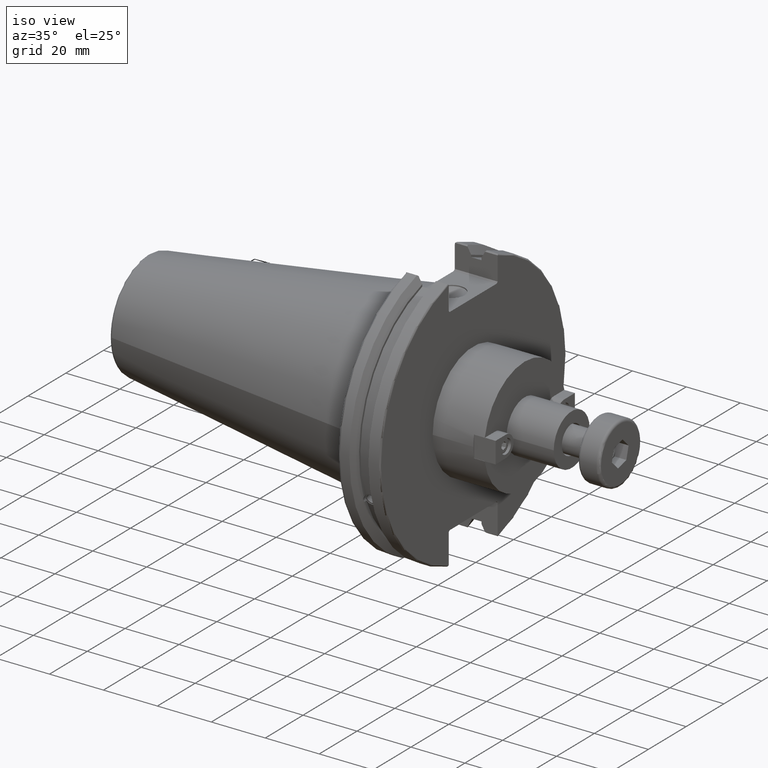
[diagram: clean part render]
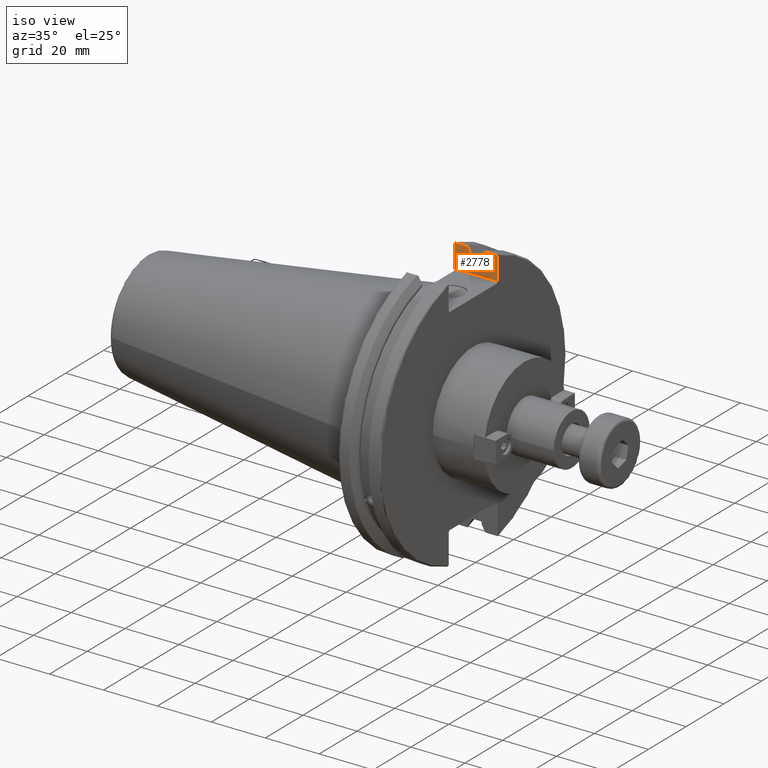
[diagram: same view with one face highlighted and labeled with its STEP entity id]
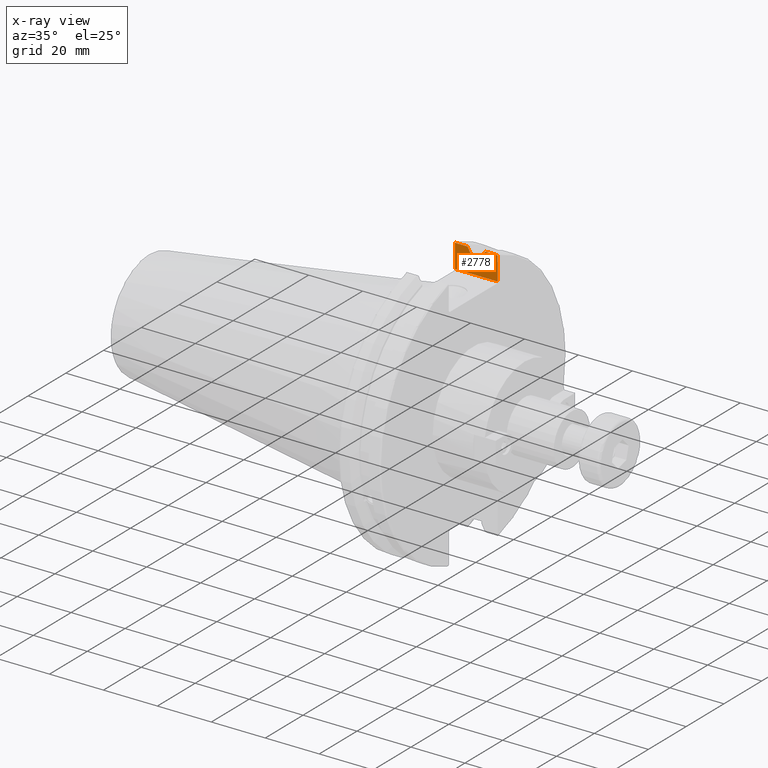
[diagram: x-ray of the same camera — body ghosted, the highlighted face saturated]
A machine part, iso view. The second image highlights one B-rep face of the part: STEP entity #2778.
The next image is the same camera in x-ray: the body ghosted, the highlighted face saturated — about 0% of this face is hidden behind the body in this view.
In plain terms, the highlighted planar face has unit normal (0, 1, 0).
Its self-contained STEP definition (entity closure, byte-faithful):
#464=(
BOUNDED_CURVE()
B_SPLINE_CURVE(2,(#4714,#4715,#4716),.UNSPECIFIED.,.F.,.F.)
B_SPLINE_CURVE_WITH_KNOTS((3,3),(0.0558332664491378,0.331657177124507),
 .UNSPECIFIED.)
CURVE()
GEOMETRIC_REPRESENTATION_ITEM()
RATIONAL_B_SPLINE_CURVE((1.00012873637135,1.00038235575519,1.))
REPRESENTATION_ITEM('')
);
#467=(
BOUNDED_CURVE()
B_SPLINE_CURVE(2,(#4918,#4919,#4920),.UNSPECIFIED.,.F.,.F.)
B_SPLINE_CURVE_WITH_KNOTS((3,3),(0.,0.275823910671402),.UNSPECIFIED.)
CURVE()
GEOMETRIC_REPRESENTATION_ITEM()
RATIONAL_B_SPLINE_CURVE((1.,1.00038235574129,1.00012873636668))
REPRESENTATION_ITEM('')
);
#505=B_SPLINE_CURVE_WITH_KNOTS('',3,(#4867,#4868,#4869,#4870),
 .UNSPECIFIED.,.F.,.F.,(4,4),(0.0736055209895125,0.0754235736011055),
 .UNSPECIFIED.);
#510=B_SPLINE_CURVE_WITH_KNOTS('',3,(#4928,#4929,#4930,#4931,#4932,#4933),
 .UNSPECIFIED.,.F.,.F.,(4,2,4),(0.452859340315923,0.491741138916218,0.506051994111224),
 .UNSPECIFIED.);
#790=FACE_OUTER_BOUND('',#948,.T.);
#948=EDGE_LOOP('',(#2260,#2261,#2262,#2263,#2264,#2265,#2266,#2267,#2268,
#2269,#2270,#2271));
#1101=LINE('',#4767,#1269);
#1121=LINE('',#4859,#1289);
#1128=LINE('',#4916,#1296);
#1129=LINE('',#4922,#1297);
#1130=LINE('',#4924,#1298);
#1131=LINE('',#4925,#1299);
#1132=LINE('',#4927,#1300);
#1133=LINE('',#4934,#1301);
#1269=VECTOR('',#3619,10.);
#1289=VECTOR('',#3659,10.);
#1296=VECTOR('',#3674,10.);
#1297=VECTOR('',#3675,10.);
#1298=VECTOR('',#3676,10.);
#1299=VECTOR('',#3677,10.);
#1300=VECTOR('',#3678,10.);
#1301=VECTOR('',#3679,10.);
#1464=VERTEX_POINT('',#4709);
#1465=VERTEX_POINT('',#4713);
#1482=VERTEX_POINT('',#4764);
#1483=VERTEX_POINT('',#4766);
#1507=VERTEX_POINT('',#4856);
#1508=VERTEX_POINT('',#4858);
#1511=VERTEX_POINT('',#4866);
#1517=VERTEX_POINT('',#4915);
#1518=VERTEX_POINT('',#4917);
#1519=VERTEX_POINT('',#4921);
#1520=VERTEX_POINT('',#4923);
#1521=VERTEX_POINT('',#4926);
#1725=EDGE_CURVE('',#1464,#1465,#464,.T.);
#1749=EDGE_CURVE('',#1482,#1483,#1101,.T.);
#1780=EDGE_CURVE('',#1507,#1508,#1121,.T.);
#1784=EDGE_CURVE('',#1511,#1507,#505,.T.);
#1794=EDGE_CURVE('',#1517,#1511,#1128,.T.);
#1795=EDGE_CURVE('',#1518,#1517,#467,.T.);
#1796=EDGE_CURVE('',#1519,#1518,#1129,.T.);
#1797=EDGE_CURVE('',#1520,#1519,#1130,.T.);
#1798=EDGE_CURVE('',#1465,#1520,#1131,.T.);
#1799=EDGE_CURVE('',#1521,#1464,#1132,.T.);
#1800=EDGE_CURVE('',#1483,#1521,#510,.T.);
#1801=EDGE_CURVE('',#1508,#1482,#1133,.T.);
#2260=ORIENTED_EDGE('',*,*,#1784,.F.);
#2261=ORIENTED_EDGE('',*,*,#1794,.F.);
#2262=ORIENTED_EDGE('',*,*,#1795,.F.);
#2263=ORIENTED_EDGE('',*,*,#1796,.F.);
#2264=ORIENTED_EDGE('',*,*,#1797,.F.);
#2265=ORIENTED_EDGE('',*,*,#1798,.F.);
#2266=ORIENTED_EDGE('',*,*,#1725,.F.);
#2267=ORIENTED_EDGE('',*,*,#1799,.F.);
#2268=ORIENTED_EDGE('',*,*,#1800,.F.);
#2269=ORIENTED_EDGE('',*,*,#1749,.F.);
#2270=ORIENTED_EDGE('',*,*,#1801,.F.);
#2271=ORIENTED_EDGE('',*,*,#1780,.F.);
#2671=PLANE('',#3138);
#2778=ADVANCED_FACE('',(#790),#2671,.F.);
#3138=AXIS2_PLACEMENT_3D('',#4914,#3672,#3673);
#3619=DIRECTION('',(0.,0.,1.));
#3659=DIRECTION('',(0.,0.,-1.));
#3672=DIRECTION('center_axis',(0.,1.,0.));
#3673=DIRECTION('ref_axis',(-1.,0.,0.));
#3674=DIRECTION('',(1.,0.,0.));
#3675=DIRECTION('',(0.,0.,1.));
#3676=DIRECTION('',(1.,0.,0.));
#3677=DIRECTION('',(0.,0.,-1.));
#3678=DIRECTION('',(1.,0.,0.));
#3679=DIRECTION('',(-1.,0.,0.));
#4709=CARTESIAN_POINT('',(7.88638960562424,12.95,46.9780755322918));
#4713=CARTESIAN_POINT('',(9.2191,12.95,44.5791147973604));
#4714=CARTESIAN_POINT('Ctrl Pts',(7.88638960562424,12.95,46.9780755322918));
#4715=CARTESIAN_POINT('Ctrl Pts',(8.57020449055492,12.95,45.7494966802213));
#4716=CARTESIAN_POINT('Ctrl Pts',(9.2191,12.95,44.5791147973604));
#4764=CARTESIAN_POINT('',(3.175,12.95,38.219));
#4766=CARTESIAN_POINT('',(3.175,12.95,46.4407434937254));
#4767=CARTESIAN_POINT('',(3.175,12.95,18.8595));
#4856=CARTESIAN_POINT('',(19.05,12.95,46.9596119686907));
#4858=CARTESIAN_POINT('',(19.05,12.95,38.219));
#4859=CARTESIAN_POINT('',(19.05,12.95,18.8595));
#4866=CARTESIAN_POINT('',(19.0496830805184,12.95,46.9780755322918));
#4867=CARTESIAN_POINT('Ctrl Pts',(19.0496830805184,12.95,46.9780755322918));
#4868=CARTESIAN_POINT('Ctrl Pts',(19.0498973982709,12.95,46.9718345778939));
#4869=CARTESIAN_POINT('Ctrl Pts',(19.05,12.95,46.9656721440627));
#4870=CARTESIAN_POINT('Ctrl Pts',(19.05,12.95,46.9596119686907));
#4914=CARTESIAN_POINT('Origin',(20.05,12.95,37.719));
#4915=CARTESIAN_POINT('',(14.3818103943757,12.95,46.9780755322918));
#4916=CARTESIAN_POINT('',(16.8551045170244,12.95,46.9780755322918));
#4917=CARTESIAN_POINT('',(13.0491,12.95,44.5791147973604));
#4918=CARTESIAN_POINT('Ctrl Pts',(13.0491,12.95,44.5791147973604));
#4919=CARTESIAN_POINT('Ctrl Pts',(13.6979955094846,12.95,45.7494966802924));
#4920=CARTESIAN_POINT('Ctrl Pts',(14.3818103943757,12.95,46.9780755322918));
#4921=CARTESIAN_POINT('',(13.0491,12.95,43.7678716897452));
#4922=CARTESIAN_POINT('',(13.0491,12.95,18.8595));
#4923=CARTESIAN_POINT('',(9.2191,12.95,43.7678716897452));
#4924=CARTESIAN_POINT('',(11.1341,12.95,43.7678716897452));
#4925=CARTESIAN_POINT('',(9.2191,12.95,18.8595));
#4926=CARTESIAN_POINT('',(3.31949794294344,12.95,46.9780755322918));
#4927=CARTESIAN_POINT('',(5.39149548297563,12.95,46.9780755322918));
#4928=CARTESIAN_POINT('Ctrl Pts',(3.175,12.95,46.4407434937254));
#4929=CARTESIAN_POINT('Ctrl Pts',(3.175,12.95,46.5703494890597));
#4930=CARTESIAN_POINT('Ctrl Pts',(3.20453530071253,12.95,46.7230464903732));
#4931=CARTESIAN_POINT('Ctrl Pts',(3.27115672912336,12.95,46.887363294568));
#4932=CARTESIAN_POINT('Ctrl Pts',(3.29341556483839,12.95,46.9333752207329));
#4933=CARTESIAN_POINT('Ctrl Pts',(3.31949794294344,12.95,46.9780755322918));
#4934=CARTESIAN_POINT('',(19.06875,12.95,38.219));